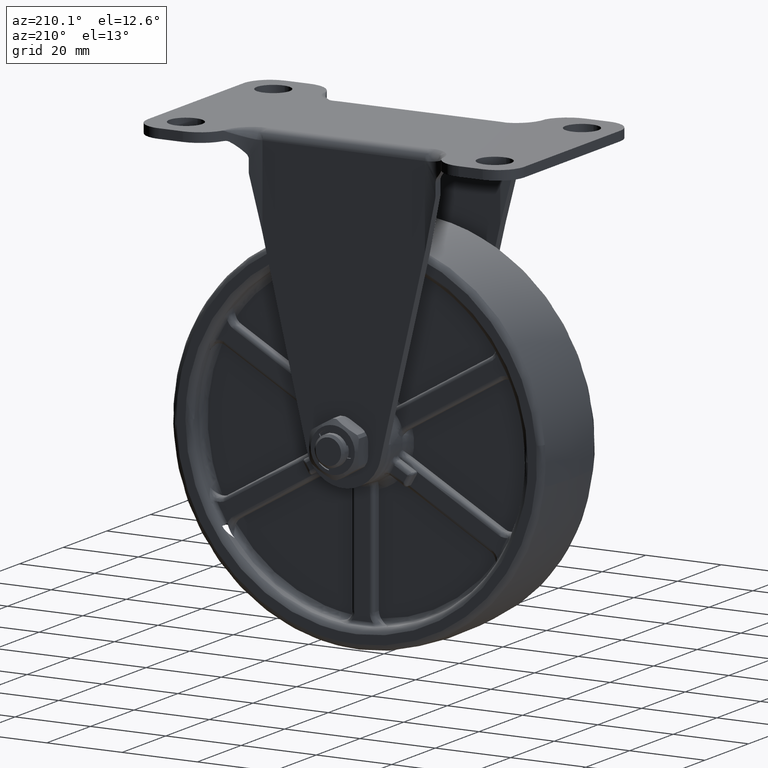
[diagram: clean part render]
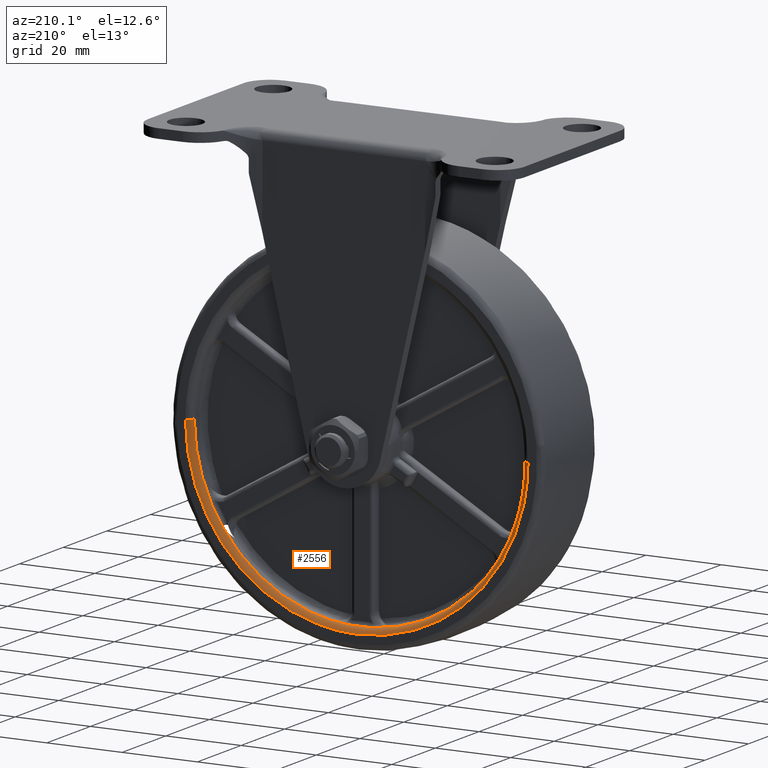
[diagram: same view with one face highlighted and labeled with its STEP entity id]
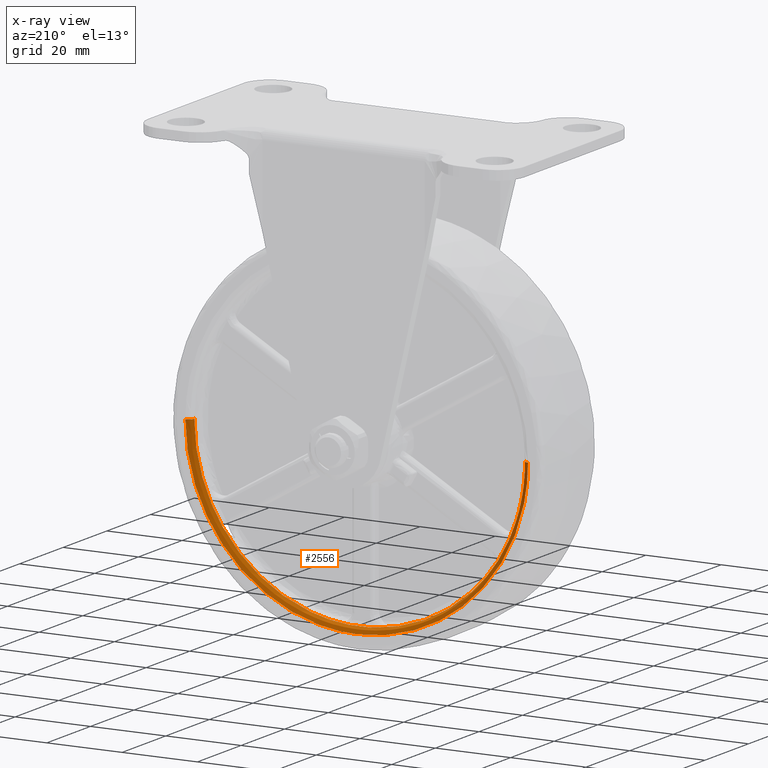
[diagram: x-ray of the same camera — body ghosted, the highlighted face saturated]
A machine part, auxiliary view. The second image highlights one B-rep face of the part: STEP entity #2556.
The next image is the same camera in x-ray: the body ghosted, the highlighted face saturated — about 0% of this face is hidden behind the body in this view.
In plain terms, the highlighted face is a freeform B-spline surface patch.
Its self-contained STEP definition (entity closure, byte-faithful):
#2230=CARTESIAN_POINT('',(-77.499999994150556,12.500000000000000,-70.0));
#2231=VERTEX_POINT('',#2230);
#2247=CARTESIAN_POINT('',(13.499999994150560,12.500000000000000,-70.0));
#2248=VERTEX_POINT('',#2247);
#2262=CARTESIAN_POINT('',(11.999999999999989,11.000000000340190,-70.0));
#2263=VERTEX_POINT('',#2262);
#2264=CARTESIAN_POINT('',(13.499999994150558,12.500000000000000,-70.0));
#2265=CARTESIAN_POINT('',(12.000000000680368,12.499999988301122,-70.0));
#2266=CARTESIAN_POINT('',(11.999999999999996,11.000000000340194,-70.0));
#2274=(BOUNDED_CURVE()B_SPLINE_CURVE(2,(#2264,#2265,#2266),.UNSPECIFIED.,.F.,.U.)B_SPLINE_CURVE_WITH_KNOTS((3,3),(-1.726807291546946,-0.285995334505938),.UNSPECIFIED.)CURVE()GEOMETRIC_REPRESENTATION_ITEM()RATIONAL_B_SPLINE_CURVE((0.882788773341762,0.622603439235813,0.878205638890932))REPRESENTATION_ITEM(''));
#2275=EDGE_CURVE('',#2248,#2263,#2274,.T.);
#2367=CARTESIAN_POINT('',(-76.0,11.000000000340190,-70.000000000000028));
#2368=VERTEX_POINT('',#2367);
#2382=CARTESIAN_POINT('',(-77.499999994150556,12.500000000000000,-70.0));
#2383=CARTESIAN_POINT('',(-76.000000000680359,12.499999988301132,-70.000000000000014));
#2384=CARTESIAN_POINT('',(-76.0,11.000000000340195,-70.000000000000028));
#2392=(BOUNDED_CURVE()B_SPLINE_CURVE(2,(#2382,#2383,#2384),.UNSPECIFIED.,.F.,.U.)B_SPLINE_CURVE_WITH_KNOTS((3,3),(-1.726807291546953,-0.285995334505937),.UNSPECIFIED.)CURVE()GEOMETRIC_REPRESENTATION_ITEM()RATIONAL_B_SPLINE_CURVE((0.882788773341764,0.622603439235811,0.878205638890932))REPRESENTATION_ITEM(''));
#2393=EDGE_CURVE('',#2231,#2368,#2392,.T.);
#2398=CARTESIAN_POINT('',(13.604029149197306,12.496388297240149,-70.000000000000014));
#2399=CARTESIAN_POINT('',(13.604029149197304,12.496388297240149,-115.604029149197300));
#2400=CARTESIAN_POINT('',(-31.999999999999996,12.496388297240149,-115.604029149197270));
#2401=CARTESIAN_POINT('',(-77.604029149197302,12.496388297240149,-115.604029149197300));
#2402=CARTESIAN_POINT('',(-77.604029149197288,12.496388297240149,-70.000000000000014));
#2403=CARTESIAN_POINT('',(11.883390628072622,12.616007357185270,-70.0));
#2404=CARTESIAN_POINT('',(11.883390628072616,12.616007357185264,-113.883390628072600));
#2405=CARTESIAN_POINT('',(-31.999999999999993,12.616007357185270,-113.883390628072620));
#2406=CARTESIAN_POINT('',(-75.883390628072632,12.616007357185264,-113.883390628072600));
#2407=CARTESIAN_POINT('',(-75.883390628072618,12.616007357185270,-70.000000000000043));
#2408=CARTESIAN_POINT('',(12.003650553542757,10.895413509060084,-70.0));
#2409=CARTESIAN_POINT('',(12.003650553542752,10.895413509060086,-114.003650553542740));
#2410=CARTESIAN_POINT('',(-31.999999999999993,10.895413509060084,-114.003650553542770));
#2411=CARTESIAN_POINT('',(-76.003650553542741,10.895413509060086,-114.003650553542780));
#2412=CARTESIAN_POINT('',(-76.003650553542755,10.895413509060084,-70.000000000000028));
#2420=(BOUNDED_SURFACE()B_SPLINE_SURFACE(2,2,((#2398,#2403,#2408),(#2399,#2404,#2409),(#2400,#2405,#2410),(#2401,#2406,#2411),(#2402,#2407,#2412)),.UNSPECIFIED.,.F.,.F.,.U.)B_SPLINE_SURFACE_WITH_KNOTS((3,2,3),(3,3),(0.0,75.559229489821917,151.118458979643800),(0.0,2.733559724976032),.UNSPECIFIED.)GEOMETRIC_REPRESENTATION_ITEM()RATIONAL_B_SPLINE_SURFACE(((0.910069100477272,0.595552485650027,0.905027232987840),(0.643516032295821,0.421119201155638,0.639950893604199),(0.910069100477272,0.595552485650027,0.905027232987840),(0.643516032295821,0.421119201155638,0.639950893604199),(0.910069100477272,0.595552485650027,0.905027232987840)))REPRESENTATION_ITEM('')SURFACE());
#2421=CARTESIAN_POINT('',(-32.0,12.500000000000000,-115.500000000000000));
#2422=VERTEX_POINT('',#2421);
#2423=CARTESIAN_POINT('',(-32.0,12.500000000000000,-115.500000000000000));
#2424=CARTESIAN_POINT('',(-77.499999999999801,12.500000000000000,-115.500000000000040));
#2425=CARTESIAN_POINT('',(-77.499999994150556,12.500000000000005,-70.0));
#2433=(BOUNDED_CURVE()B_SPLINE_CURVE(2,(#2423,#2424,#2425),.UNSPECIFIED.,.F.,.U.)B_SPLINE_CURVE_WITH_KNOTS((3,3),(0.500000000000000,0.749999999999999),.UNSPECIFIED.)CURVE()GEOMETRIC_REPRESENTATION_ITEM()RATIONAL_B_SPLINE_CURVE((1.0,0.707106781186549,0.999999999999998))REPRESENTATION_ITEM(''));
#2434=EDGE_CURVE('',#2422,#2231,#2433,.T.);
#2435=ORIENTED_EDGE('',*,*,#2434,.T.);
#2436=ORIENTED_EDGE('',*,*,#2393,.T.);
#2437=CARTESIAN_POINT('',(-71.440846077907509,11.0,-89.504349788157612));
#2438=VERTEX_POINT('',#2437);
#2439=CARTESIAN_POINT('',(-71.440846077907537,11.0,-89.504349788157640));
#2440=CARTESIAN_POINT('',(-76.0,11.0,-80.285027429823216));
#2441=CARTESIAN_POINT('',(-76.0,11.000000000340197,-70.000000000000028));
#2449=(BOUNDED_CURVE()B_SPLINE_CURVE(2,(#2439,#2440,#2441),.UNSPECIFIED.,.F.,.U.)B_SPLINE_CURVE_WITH_KNOTS((3,3),(0.0,0.499999999999998),.UNSPECIFIED.)CURVE()GEOMETRIC_REPRESENTATION_ITEM()RATIONAL_B_SPLINE_CURVE((1.0,0.948191432703495,0.948191432703494))REPRESENTATION_ITEM(''));
#2450=EDGE_CURVE('',#2438,#2368,#2449,.T.);
#2451=ORIENTED_EDGE('',*,*,#2450,.F.);
#2452=CARTESIAN_POINT('',(-68.611685439795991,11.0,-94.404599756140797));
#2453=VERTEX_POINT('',#2452);
#2454=CARTESIAN_POINT('',(-68.611685439796005,11.0,-94.404599756140826));
#2455=CARTESIAN_POINT('',(-70.184133283242659,11.0,-92.045619629852595));
#2456=CARTESIAN_POINT('',(-71.440846077907537,11.0,-89.504349788157640));
#2464=(BOUNDED_CURVE()B_SPLINE_CURVE(2,(#2454,#2455,#2456),.UNSPECIFIED.,.F.,.U.)CURVE()GEOMETRIC_REPRESENTATION_ITEM()QUASI_UNIFORM_CURVE()RATIONAL_B_SPLINE_CURVE((1.0,0.997930671461332,1.0))REPRESENTATION_ITEM(''));
#2465=EDGE_CURVE('',#2453,#2438,#2464,.T.);
#2466=ORIENTED_EDGE('',*,*,#2465,.F.);
#2467=CARTESIAN_POINT('',(-34.829160638111603,11.0,-113.908949544298390));
#2468=VERTEX_POINT('',#2467);
#2469=CARTESIAN_POINT('',(-34.829160638111603,11.0,-113.908949544298590));
#2470=CARTESIAN_POINT('',(-56.543084042566235,11.0,-112.509868536157570));
#2471=CARTESIAN_POINT('',(-68.611685439796005,11.0,-94.404599756140826));
#2479=(BOUNDED_CURVE()B_SPLINE_CURVE(2,(#2469,#2470,#2471),.UNSPECIFIED.,.F.,.U.)CURVE()GEOMETRIC_REPRESENTATION_ITEM()QUASI_UNIFORM_CURVE()RATIONAL_B_SPLINE_CURVE((1.0,0.896382865406989,1.0))REPRESENTATION_ITEM(''));
#2480=EDGE_CURVE('',#2468,#2453,#2479,.T.);
#2481=ORIENTED_EDGE('',*,*,#2480,.F.);
#2482=CARTESIAN_POINT('',(-29.170839361888451,11.0,-113.908949544298390));
#2483=VERTEX_POINT('',#2482);
#2484=CARTESIAN_POINT('',(-29.170839361888429,11.0,-113.908949544298590));
#2485=CARTESIAN_POINT('',(-32.000000000000028,11.000000000000002,-114.091239259705330));
#2486=CARTESIAN_POINT('',(-34.829160638111603,11.0,-113.908949544298590));
#2494=(BOUNDED_CURVE()B_SPLINE_CURVE(2,(#2484,#2485,#2486),.UNSPECIFIED.,.F.,.U.)CURVE()GEOMETRIC_REPRESENTATION_ITEM()QUASI_UNIFORM_CURVE()RATIONAL_B_SPLINE_CURVE((1.0,0.997930671461332,1.0))REPRESENTATION_ITEM(''));
#2495=EDGE_CURVE('',#2483,#2468,#2494,.T.);
#2496=ORIENTED_EDGE('',*,*,#2495,.F.);
#2497=CARTESIAN_POINT('',(4.611685439795930,11.0,-94.404599756140897));
#2498=VERTEX_POINT('',#2497);
#2499=CARTESIAN_POINT('',(4.611685439795961,11.0,-94.404599756140911));
#2500=CARTESIAN_POINT('',(-7.456915957433838,11.0,-112.509868536157600));
#2501=CARTESIAN_POINT('',(-29.170839361888429,11.0,-113.908949544298590));
#2509=(BOUNDED_CURVE()B_SPLINE_CURVE(2,(#2499,#2500,#2501),.UNSPECIFIED.,.F.,.U.)CURVE()GEOMETRIC_REPRESENTATION_ITEM()QUASI_UNIFORM_CURVE()RATIONAL_B_SPLINE_CURVE((1.0,0.896382865406989,1.0))REPRESENTATION_ITEM(''));
#2510=EDGE_CURVE('',#2498,#2483,#2509,.T.);
#2511=ORIENTED_EDGE('',*,*,#2510,.F.);
#2512=CARTESIAN_POINT('',(7.440846077907520,11.0,-89.504349788157612));
#2513=VERTEX_POINT('',#2512);
#2514=CARTESIAN_POINT('',(7.440846077907557,11.0,-89.504349788157626));
#2515=CARTESIAN_POINT('',(6.184133283242646,11.0,-92.045619629852638));
#2516=CARTESIAN_POINT('',(4.611685439795961,11.0,-94.404599756140911));
#2524=(BOUNDED_CURVE()B_SPLINE_CURVE(2,(#2514,#2515,#2516),.UNSPECIFIED.,.F.,.U.)CURVE()GEOMETRIC_REPRESENTATION_ITEM()QUASI_UNIFORM_CURVE()RATIONAL_B_SPLINE_CURVE((1.0,0.997930671461332,1.0))REPRESENTATION_ITEM(''));
#2525=EDGE_CURVE('',#2513,#2498,#2524,.T.);
#2526=ORIENTED_EDGE('',*,*,#2525,.F.);
#2527=CARTESIAN_POINT('',(11.999999999999995,11.000000000340194,-70.0));
#2528=CARTESIAN_POINT('',(12.000000000000002,10.999999999999996,-80.285027429823188));
#2529=CARTESIAN_POINT('',(7.440846077907557,11.0,-89.504349788157626));
#2537=(BOUNDED_CURVE()B_SPLINE_CURVE(2,(#2527,#2528,#2529),.UNSPECIFIED.,.F.,.U.)B_SPLINE_CURVE_WITH_KNOTS((3,3),(0.500000000000001,1.0),.UNSPECIFIED.)CURVE()GEOMETRIC_REPRESENTATION_ITEM()RATIONAL_B_SPLINE_CURVE((0.948191432703495,0.948191432703495,1.0))REPRESENTATION_ITEM(''));
#2538=EDGE_CURVE('',#2263,#2513,#2537,.T.);
#2539=ORIENTED_EDGE('',*,*,#2538,.F.);
#2540=ORIENTED_EDGE('',*,*,#2275,.F.);
#2541=CARTESIAN_POINT('',(13.499999994150560,12.500000000000000,-70.0));
#2542=CARTESIAN_POINT('',(13.500000000000005,12.500000000000000,-115.500000000000010));
#2543=CARTESIAN_POINT('',(-32.0,12.500000000000000,-115.500000000000000));
#2551=(BOUNDED_CURVE()B_SPLINE_CURVE(2,(#2541,#2542,#2543),.UNSPECIFIED.,.F.,.U.)B_SPLINE_CURVE_WITH_KNOTS((3,3),(0.250000000000000,0.500000000000000),.UNSPECIFIED.)CURVE()GEOMETRIC_REPRESENTATION_ITEM()RATIONAL_B_SPLINE_CURVE((1.0,0.707106781186548,1.0))REPRESENTATION_ITEM(''));
#2552=EDGE_CURVE('',#2248,#2422,#2551,.T.);
#2553=ORIENTED_EDGE('',*,*,#2552,.T.);
#2554=EDGE_LOOP('',(#2435,#2436,#2451,#2466,#2481,#2496,#2511,#2526,#2539,#2540,#2553));
#2555=FACE_OUTER_BOUND('',#2554,.T.);
#2556=ADVANCED_FACE('',(#2555),#2420,.T.);